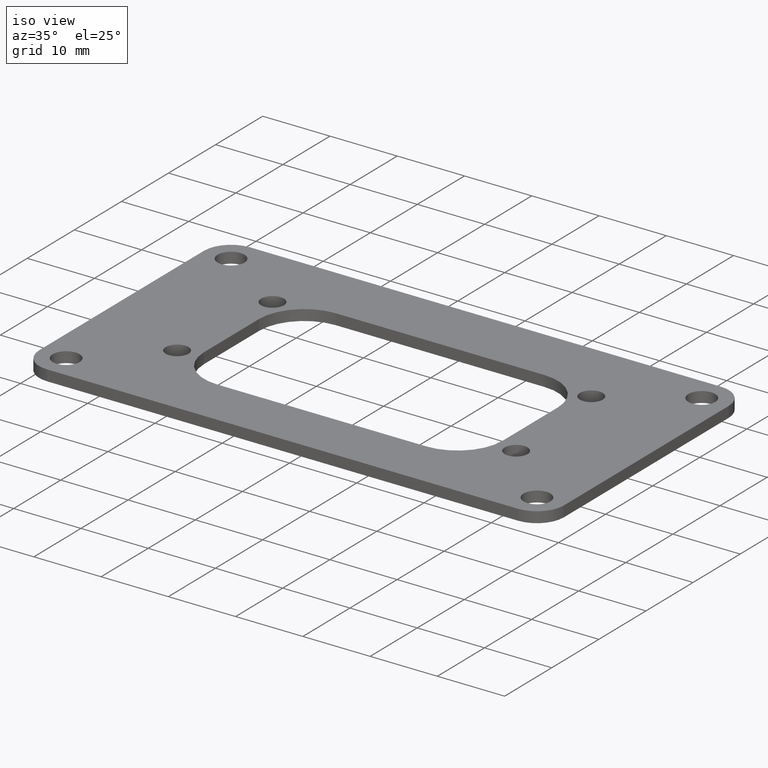
[diagram: clean part render]
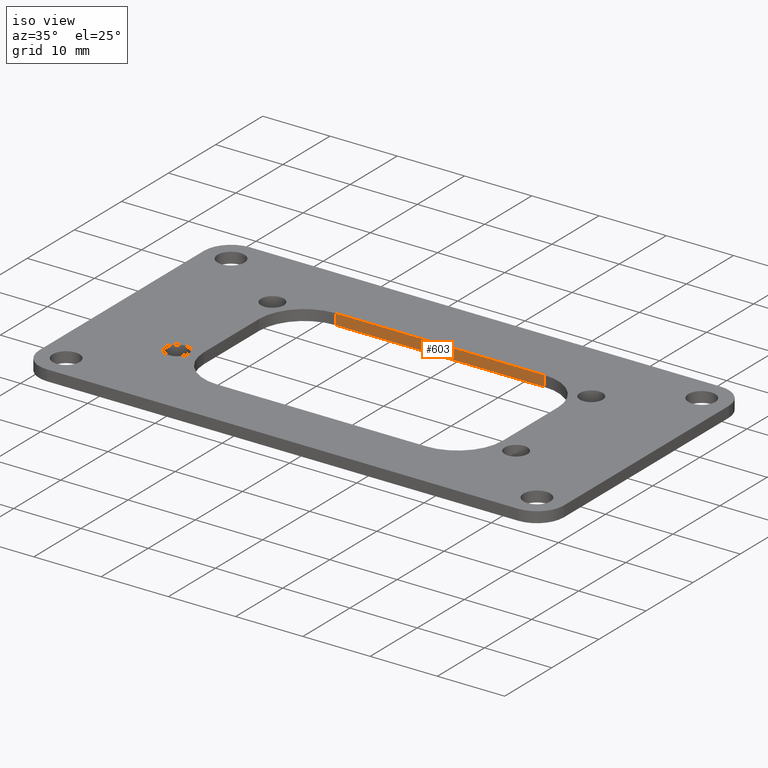
[diagram: same view with one face highlighted and labeled with its STEP entity id]
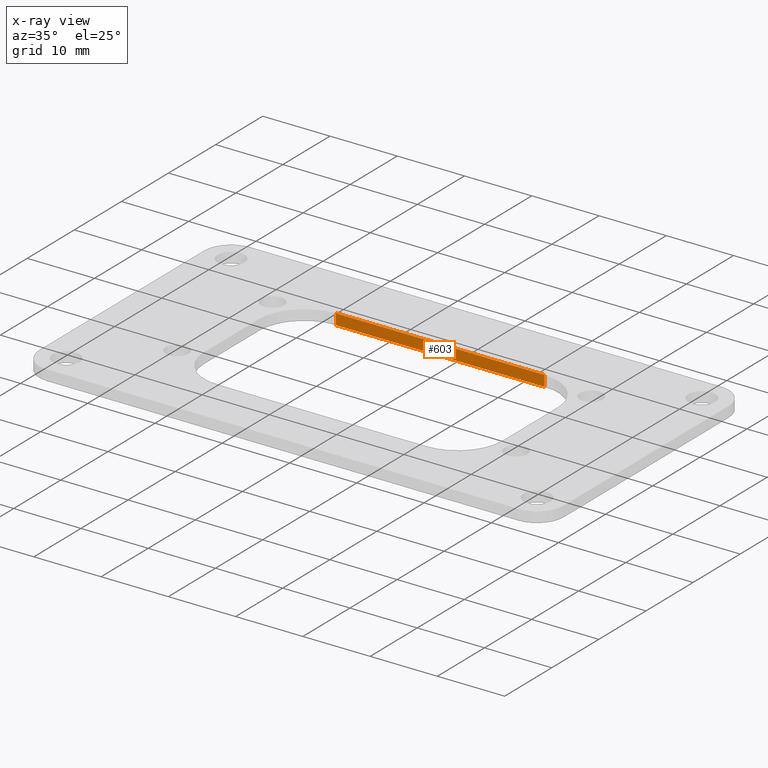
[diagram: x-ray of the same camera — body ghosted, the highlighted face saturated]
A machine part, iso view. The second image highlights one B-rep face of the part: STEP entity #603.
The next image is the same camera in x-ray: the body ghosted, the highlighted face saturated — about 0% of this face is hidden behind the body in this view.
In plain terms, the highlighted planar face has unit normal (0, 1, 0).
Its self-contained STEP definition (entity closure, byte-faithful):
#574 = EDGE_CURVE('',#575,#577,#579,.T.);
#575 = VERTEX_POINT('',#576);
#576 = CARTESIAN_POINT('',(54.5,33.42,0.));
#577 = VERTEX_POINT('',#578);
#578 = CARTESIAN_POINT('',(54.5,33.42,1.60000442));
#579 = LINE('',#580,#581);
#580 = CARTESIAN_POINT('',(54.5,33.42,0.));
#581 = VECTOR('',#582,1.);
#582 = DIRECTION('',(0.,0.,1.));
#603 = ADVANCED_FACE('',(#604),#629,.F.);
#604 = FACE_BOUND('',#605,.F.);
#605 = EDGE_LOOP('',(#606,#616,#622,#623));
#606 = ORIENTED_EDGE('',*,*,#607,.T.);
#607 = EDGE_CURVE('',#608,#610,#612,.T.);
#608 = VERTEX_POINT('',#609);
#609 = CARTESIAN_POINT('',(23.475,33.42,0.));
#610 = VERTEX_POINT('',#611);
#611 = CARTESIAN_POINT('',(23.475,33.42,1.60000442));
#612 = LINE('',#613,#614);
#613 = CARTESIAN_POINT('',(23.475,33.42,0.));
#614 = VECTOR('',#615,1.);
#615 = DIRECTION('',(0.,0.,1.));
#616 = ORIENTED_EDGE('',*,*,#617,.T.);
#617 = EDGE_CURVE('',#610,#577,#618,.T.);
#618 = LINE('',#619,#620);
#619 = CARTESIAN_POINT('',(23.475,33.42,1.60000442));
#620 = VECTOR('',#621,1.);
#621 = DIRECTION('',(1.,0.,0.));
#622 = ORIENTED_EDGE('',*,*,#574,.F.);
#623 = ORIENTED_EDGE('',*,*,#624,.F.);
#624 = EDGE_CURVE('',#608,#575,#625,.T.);
#625 = LINE('',#626,#627);
#626 = CARTESIAN_POINT('',(23.475,33.42,0.));
#627 = VECTOR('',#628,1.);
#628 = DIRECTION('',(1.,0.,0.));
#629 = PLANE('',#630);
#630 = AXIS2_PLACEMENT_3D('',#631,#632,#633);
#631 = CARTESIAN_POINT('',(23.475,33.42,0.));
#632 = DIRECTION('',(0.,1.,0.));
#633 = DIRECTION('',(1.,0.,0.));